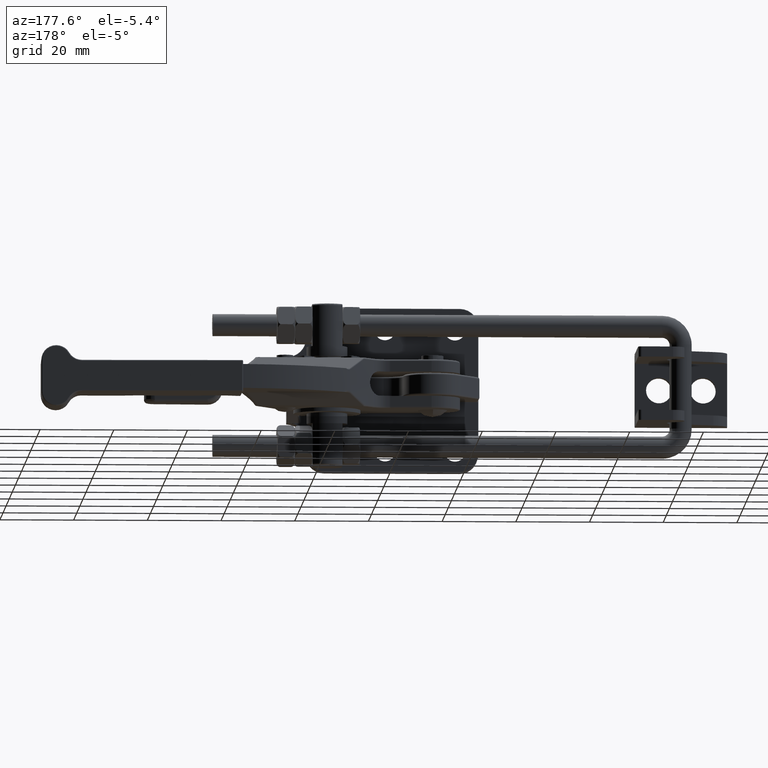
[diagram: clean part render]
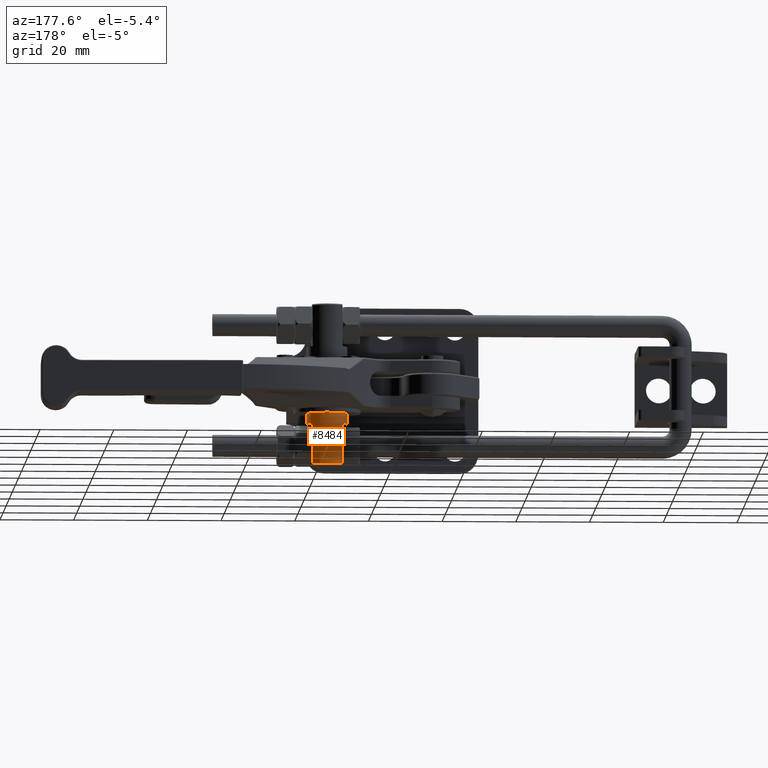
[diagram: same view with one face highlighted and labeled with its STEP entity id]
A machine part, auxiliary view. The second image highlights one B-rep face of the part: STEP entity #8484.
In plain terms, the highlighted cylindrical surface (bore or boss wall) has radius 5.5 mm, axis along (0, 0, 1).
Its self-contained STEP definition (entity closure, byte-faithful):
#418=FACE_BOUND('',#2692,.T.);
#1049=LINE('',#14872,#1491);
#1050=LINE('',#14876,#1492);
#1051=LINE('',#14880,#1493);
#1052=LINE('',#14883,#1494);
#1491=VECTOR('',#10709,11.0000000005884);
#1492=VECTOR('',#10712,11.0000000007661);
#1493=VECTOR('',#10715,11.0000000005884);
#1494=VECTOR('',#10718,11.0000000007661);
#1863=CYLINDRICAL_SURFACE('',#9213,5.5);
#2154=FACE_OUTER_BOUND('',#2691,.T.);
#2691=EDGE_LOOP('',(#6477,#6478,#6479,#6480,#6481,#6482,#6483,#6484));
#2692=EDGE_LOOP('',(#6485));
#3292=CIRCLE('',#9203,5.5);
#3300=CIRCLE('',#9214,5.5);
#3301=CIRCLE('',#9215,5.5);
#3302=CIRCLE('',#9216,5.5);
#3303=CIRCLE('',#9217,5.5);
#3821=VERTEX_POINT('',#14823);
#3822=VERTEX_POINT('',#14824);
#3834=VERTEX_POINT('',#14871);
#3835=VERTEX_POINT('',#14873);
#3836=VERTEX_POINT('',#14875);
#3837=VERTEX_POINT('',#14877);
#3838=VERTEX_POINT('',#14879);
#3839=VERTEX_POINT('',#14881);
#3840=VERTEX_POINT('',#14884);
#4804=EDGE_CURVE('',#3821,#3822,#3292,.T.);
#4818=EDGE_CURVE('',#3821,#3834,#1049,.T.);
#4819=EDGE_CURVE('',#3834,#3835,#3300,.T.);
#4820=EDGE_CURVE('',#3836,#3835,#1050,.T.);
#4821=EDGE_CURVE('',#3837,#3836,#3301,.T.);
#4822=EDGE_CURVE('',#3837,#3838,#1051,.T.);
#4823=EDGE_CURVE('',#3838,#3839,#3302,.T.);
#4824=EDGE_CURVE('',#3822,#3839,#1052,.T.);
#4825=EDGE_CURVE('',#3840,#3840,#3303,.T.);
#6477=ORIENTED_EDGE('',*,*,#4804,.F.);
#6478=ORIENTED_EDGE('',*,*,#4818,.T.);
#6479=ORIENTED_EDGE('',*,*,#4819,.T.);
#6480=ORIENTED_EDGE('',*,*,#4820,.F.);
#6481=ORIENTED_EDGE('',*,*,#4821,.F.);
#6482=ORIENTED_EDGE('',*,*,#4822,.T.);
#6483=ORIENTED_EDGE('',*,*,#4823,.T.);
#6484=ORIENTED_EDGE('',*,*,#4824,.F.);
#6485=ORIENTED_EDGE('',*,*,#4825,.F.);
#8484=ADVANCED_FACE('',(#2154,#418),#1863,.T.);
#9203=AXIS2_PLACEMENT_3D('',#14825,#10683,#10684);
#9213=AXIS2_PLACEMENT_3D('',#14870,#10707,#10708);
#9214=AXIS2_PLACEMENT_3D('',#14874,#10710,#10711);
#9215=AXIS2_PLACEMENT_3D('',#14878,#10713,#10714);
#9216=AXIS2_PLACEMENT_3D('',#14882,#10716,#10717);
#9217=AXIS2_PLACEMENT_3D('',#14885,#10719,#10720);
#10683=DIRECTION('center_axis',(0.,-1.,0.));
#10684=DIRECTION('ref_axis',(-1.,0.,0.));
#10707=DIRECTION('center_axis',(0.,1.,0.));
#10708=DIRECTION('ref_axis',(1.,0.,0.));
#10709=DIRECTION('',(-2.821718616189E-11,1.,9.126436979394E-12));
#10710=DIRECTION('center_axis',(0.,1.,0.));
#10711=DIRECTION('ref_axis',(-0.67658598495782,0.,0.736363636363622));
#10712=DIRECTION('',(3.289275922114E-11,1.,7.352744675229E-12));
#10713=DIRECTION('center_axis',(0.,-1.,0.));
#10714=DIRECTION('ref_axis',(0.676585984921393,0.,-0.736363636397092));
#10715=DIRECTION('',(2.821722653363E-11,1.,-9.126275492409E-12));
#10716=DIRECTION('center_axis',(0.,1.,0.));
#10717=DIRECTION('ref_axis',(0.67658598495782,0.,-0.736363636363622));
#10718=DIRECTION('',(-3.289279959288E-11,1.,-7.352744675229E-12));
#10719=DIRECTION('center_axis',(0.,1.,0.));
#10720=DIRECTION('ref_axis',(1.,0.,0.));
#14823=CARTESIAN_POINT('',(-3.721222916958,0.4999999994116,4.0499999999));
#14824=CARTESIAN_POINT('',(-3.721222916906,0.4999999992339,-4.049999999919));
#14825=CARTESIAN_POINT('Origin',(0.,0.5,0.));
#14870=CARTESIAN_POINT('Origin',(0.,0.,0.));
#14871=CARTESIAN_POINT('',(-3.721222917268,11.5,4.05));
#14872=CARTESIAN_POINT('',(-3.721222916958,0.4999999994116,4.0499999999));
#14873=CARTESIAN_POINT('',(3.721222917268,11.5,4.05));
#14874=CARTESIAN_POINT('Origin',(0.,11.5,0.));
#14875=CARTESIAN_POINT('',(3.721222916906,0.4999999992339,4.049999999919));
#14876=CARTESIAN_POINT('',(3.721222916906,0.4999999992339,4.049999999919));
#14877=CARTESIAN_POINT('',(3.721222916958,0.4999999994116,-4.0499999999));
#14878=CARTESIAN_POINT('Origin',(0.,0.5,0.));
#14879=CARTESIAN_POINT('',(3.721222917268,11.5,-4.05));
#14880=CARTESIAN_POINT('',(3.721222916958,0.4999999994116,-4.0499999999));
#14881=CARTESIAN_POINT('',(-3.721222917268,11.5,-4.05));
#14882=CARTESIAN_POINT('Origin',(0.,11.5,0.));
#14883=CARTESIAN_POINT('',(-3.721222916906,0.4999999992339,-4.049999999919));
#14884=CARTESIAN_POINT('',(-5.5,14.35,6.73555739531044E-16));
#14885=CARTESIAN_POINT('Origin',(0.,14.35,0.));